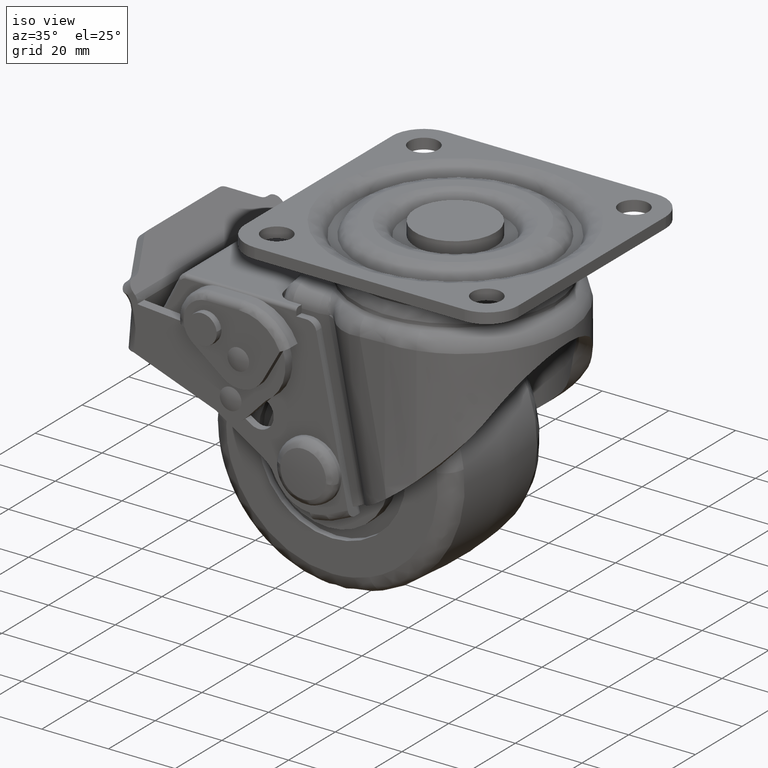
[diagram: clean part render]
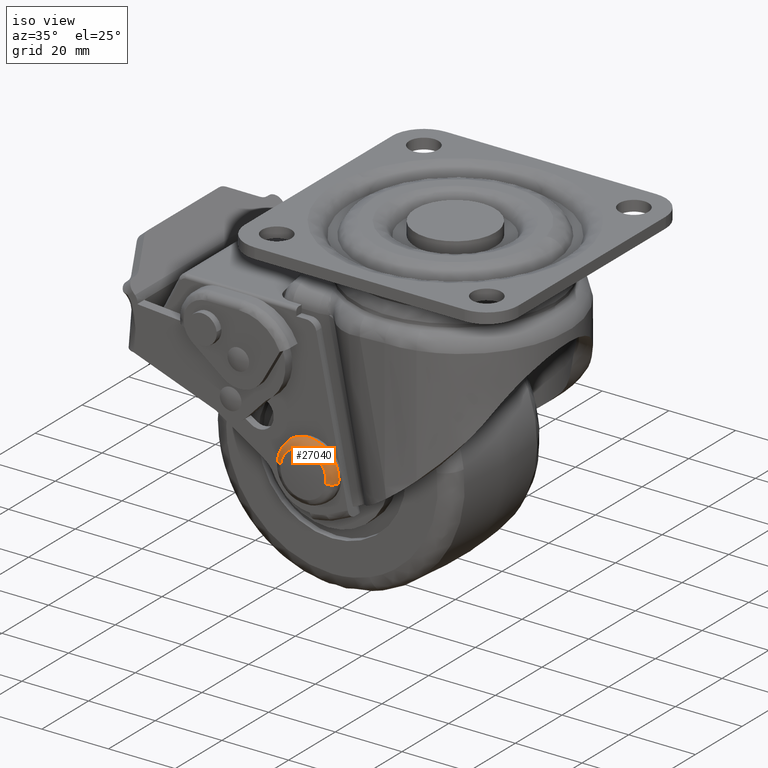
[diagram: same view with one face highlighted and labeled with its STEP entity id]
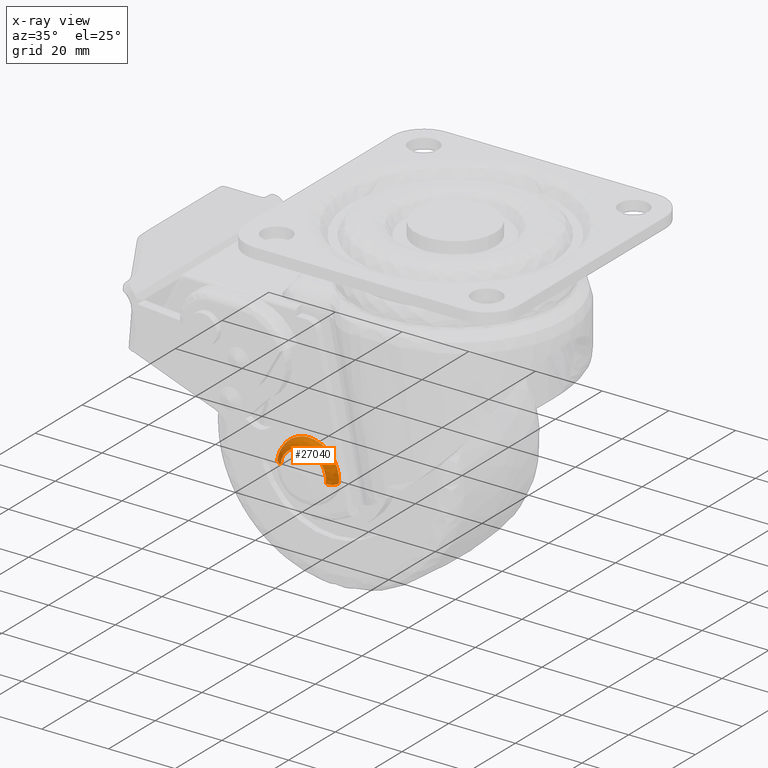
[diagram: x-ray of the same camera — body ghosted, the highlighted face saturated]
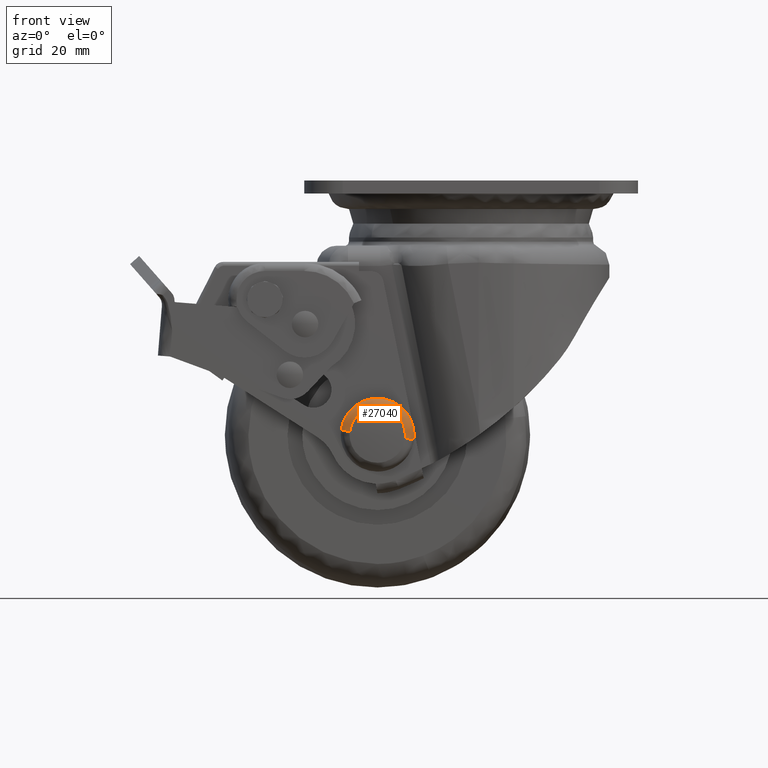
[diagram: same view with one face highlighted and labeled with its STEP entity id]
A machine part, iso view. The second image highlights one B-rep face of the part: STEP entity #27040.
The next image is the same camera in x-ray: the body ghosted, the highlighted face saturated — about 0% of this face is hidden behind the body in this view.
A second angle (front view) of the same face is appended — the face is thin or edge-on in the first view.
In plain terms, the highlighted face is a freeform B-spline surface patch.
Its self-contained STEP definition (entity closure, byte-faithful):
#26407=CARTESIAN_POINT('',(5.811674218707481,-29.053161868995410,-50.627999106358772));
#26408=VERTEX_POINT('',#26407);
#26414=CARTESIAN_POINT('',(8.929028311828976,-29.053161870163681,-58.627999102092261));
#26415=VERTEX_POINT('',#26414);
#26416=CARTESIAN_POINT('',(5.811674218707481,-29.053161868995410,-50.627999106358772));
#26417=CARTESIAN_POINT('',(6.274395239750678,-29.053161869026621,-51.019290411507697));
#26418=CARTESIAN_POINT('',(7.283405685725423,-29.053161869129180,-52.064192184336413));
#26419=CARTESIAN_POINT('',(8.301283685994950,-29.053161869356540,-53.813654656771739));
#26420=CARTESIAN_POINT('',(8.992850700197954,-29.053161869706930,-56.099178688386857));
#26421=CARTESIAN_POINT('',(9.052353214826036,-29.053161869979860,-57.656772369793622));
#26422=CARTESIAN_POINT('',(8.929028311828976,-29.053161870163681,-58.627999102092261));
#26423=B_SPLINE_CURVE_WITH_KNOTS('',3,(#26416,#26417,#26418,#26419,#26420,#26421,#26422),.UNSPECIFIED.,.F.,.U.,(4,1,1,1,4),(0.000000068808820,1.818019559321463,4.335311699469195,6.013455923362944,8.950278159138501),.UNSPECIFIED.);
#26424=EDGE_CURVE('',#26408,#26415,#26423,.T.);
#26543=CARTESIAN_POINT('',(-8.929036311828657,-29.053161870163681,-56.372000897907739));
#26544=VERTEX_POINT('',#26543);
#26554=CARTESIAN_POINT('',(-0.000003999999841,-29.053161869100101,-48.499999999999780));
#26555=VERTEX_POINT('',#26554);
#26556=CARTESIAN_POINT('',(-8.929036311828657,-29.053161870163681,-56.372000897907739));
#26557=CARTESIAN_POINT('',(-8.823203103318997,-29.053161870050172,-55.531858076485243));
#26558=CARTESIAN_POINT('',(-8.425900731529978,-29.053161869854080,-54.080078020798332));
#26559=CARTESIAN_POINT('',(-7.284676496168180,-29.053161869581619,-52.064202187539522));
#26560=CARTESIAN_POINT('',(-5.851416328861740,-29.053161869376989,-50.549867897270857));
#26561=CARTESIAN_POINT('',(-4.080824758525036,-29.053161869221800,-49.400586644710351));
#26562=CARTESIAN_POINT('',(-2.167619602670052,-29.053161869124249,-48.677696987338891));
#26563=CARTESIAN_POINT('',(-0.745164860445515,-29.053161869099711,-48.499796384354127));
#26564=CARTESIAN_POINT('',(-0.000003999999841,-29.053161869100101,-48.499999999999780));
#26565=B_SPLINE_CURVE_WITH_KNOTS('',3,(#26556,#26557,#26558,#26559,#26560,#26561,#26562,#26563,#26564),.UNSPECIFIED.,.F.,.U.,(4,1,1,1,1,1,4),(0.000000172929495,2.540284790419403,4.470929010480727,6.909517231630963,8.738560534670130,10.770833572611039,13.006262659751419),.UNSPECIFIED.);
#26566=EDGE_CURVE('',#26544,#26555,#26565,.T.);
#26568=CARTESIAN_POINT('',(-0.000003999999841,-29.053161869100101,-48.499999999999780));
#26569=CARTESIAN_POINT('',(0.723932113120254,-29.053161869039759,-48.499851469693702));
#26570=CARTESIAN_POINT('',(2.237593551534380,-29.053161868946241,-48.683509887147522));
#26571=CARTESIAN_POINT('',(4.215821030229355,-29.053161868919421,-49.457429479168553));
#26572=CARTESIAN_POINT('',(5.359440144580193,-29.053161868964882,-50.245503653525688));
#26573=CARTESIAN_POINT('',(5.811674218707481,-29.053161868995410,-50.627999106358772));
#26574=B_SPLINE_CURVE_WITH_KNOTS('',3,(#26568,#26569,#26570,#26571,#26572,#26573),.UNSPECIFIED.,.F.,.U.,(4,1,1,4),(0.000000040918571,2.171809846367652,4.541047606534105,6.317983840461574),.UNSPECIFIED.);
#26575=EDGE_CURVE('',#26555,#26408,#26574,.T.);
#26960=CARTESIAN_POINT('',(-6.628350634817715,-31.546599119232116,-56.662645089498113));
#26961=CARTESIAN_POINT('',(-5.790995724315819,-31.546599119232106,-50.034298454680233));
#26962=CARTESIAN_POINT('',(0.837350910502053,-31.546599119232116,-50.871653365182127));
#26963=CARTESIAN_POINT('',(7.465697545319928,-31.546599119232106,-51.709008275684027));
#26964=CARTESIAN_POINT('',(6.628342634818034,-31.546599119232116,-58.337354910501894));
#26965=CARTESIAN_POINT('',(-9.083266048084569,-31.366950750989783,-56.352517151202314));
#26966=CARTESIAN_POINT('',(-7.935783199286902,-31.366950750989780,-47.269255103117601));
#26967=CARTESIAN_POINT('',(1.147478848797826,-31.366950750989783,-48.416737951915266));
#26968=CARTESIAN_POINT('',(10.230740896882553,-31.366950750989780,-49.564220800712938));
#26969=CARTESIAN_POINT('',(9.083258048084888,-31.366950750989783,-58.647482848797651));
#26970=CARTESIAN_POINT('',(-8.923827244133479,-28.891221336028458,-56.372658956205669));
#26971=CARTESIAN_POINT('',(-7.796486200339144,-28.891221336028455,-47.448835712072032));
#26972=CARTESIAN_POINT('',(1.127337043794494,-28.891221336028458,-48.576176755866364));
#26973=CARTESIAN_POINT('',(10.051160287928132,-28.891221336028455,-49.703517799660695));
#26974=CARTESIAN_POINT('',(8.923819244133799,-28.891221336028458,-58.627341043794324));
#26982=(BOUNDED_SURFACE()B_SPLINE_SURFACE(2,2,((#26960,#26965,#26970),(#26961,#26966,#26971),(#26962,#26967,#26972),(#26963,#26968,#26973),(#26964,#26969,#26974)),.UNSPECIFIED.,.F.,.F.,.U.)B_SPLINE_SURFACE_WITH_KNOTS((3,2,3),(3,3),(0.0,14.902988983201290,29.805977966402569),(0.0,4.119737612577875),.UNSPECIFIED.)GEOMETRIC_REPRESENTATION_ITEM()RATIONAL_B_SPLINE_SURFACE(((0.912865147946400,0.647833853267935,0.912514118267738),(0.645493136421761,0.458087710727968,0.645244920955581),(0.912865147946400,0.647833853267935,0.912514118267738),(0.645493136421761,0.458087710727968,0.645244920955581),(0.912865147946400,0.647833853267935,0.912514118267738)))REPRESENTATION_ITEM('')SURFACE());
#26983=ORIENTED_EDGE('',*,*,#26566,.F.);
#26984=CARTESIAN_POINT('',(-6.788157485239669,-31.529644137011640,-56.642456431096747));
#26985=VERTEX_POINT('',#26984);
#26986=CARTESIAN_POINT('',(-6.788157485239669,-31.529644137011640,-56.642456431096747));
#26987=CARTESIAN_POINT('',(-7.173593044585087,-31.476634480888631,-56.593764660963487));
#26988=CARTESIAN_POINT('',(-7.793627247896261,-31.231302488117759,-56.515436229217130));
#26989=CARTESIAN_POINT('',(-8.402359070482010,-30.642521704770491,-56.438535618309082));
#26990=CARTESIAN_POINT('',(-8.812745765264502,-29.948746734529170,-56.386691790916387));
#26991=CARTESIAN_POINT('',(-8.929516866302224,-29.407919302697319,-56.371940189842590));
#26992=CARTESIAN_POINT('',(-8.929036311828657,-29.053161870163681,-56.372000897907739));
#26993=B_SPLINE_CURVE_WITH_KNOTS('',3,(#26986,#26987,#26988,#26989,#26990,#26991,#26992),.UNSPECIFIED.,.F.,.U.,(4,1,1,1,4),(0.000000346805479,1.175970786803507,1.959915633324870,2.519912017597094,3.583883420214898),.UNSPECIFIED.);
#26994=EDGE_CURVE('',#26985,#26544,#26993,.T.);
#26995=ORIENTED_EDGE('',*,*,#26994,.F.);
#26996=CARTESIAN_POINT('',(-0.000003999999841,-31.529644181574849,-50.657894746691909));
#26997=VERTEX_POINT('',#26996);
#26998=CARTESIAN_POINT('',(-6.788157485239669,-31.529644137011640,-56.642456431096747));
#26999=CARTESIAN_POINT('',(-6.688720142690690,-31.529644142910040,-55.850352040607710));
#27000=CARTESIAN_POINT('',(-6.292839521340403,-31.529644152390350,-54.577155224684176));
#27001=CARTESIAN_POINT('',(-5.357600834694368,-31.529644162822390,-53.176259564657727));
#27002=CARTESIAN_POINT('',(-4.303527080050796,-31.529644170749680,-52.111629820340127));
#27003=CARTESIAN_POINT('',(-3.039399053621495,-31.529644176861272,-51.290906397828202));
#27004=CARTESIAN_POINT('',(-1.493438854927162,-31.529644180769509,-50.766043855136793));
#27005=CARTESIAN_POINT('',(-0.489239837921728,-31.529644181575360,-50.657827844910933));
#27006=CARTESIAN_POINT('',(-0.000003999999841,-31.529644181574849,-50.657894746691909));
#27007=B_SPLINE_CURVE_WITH_KNOTS('',3,(#26998,#26999,#27000,#27001,#27002,#27003,#27004,#27005,#27006),.UNSPECIFIED.,.F.,.U.,(4,1,1,1,1,1,4),(0.000000180895514,2.394701582150401,3.939678447351436,5.021084091684855,6.875098898178255,8.420096218104273,9.887801736038464),.UNSPECIFIED.);
#27008=EDGE_CURVE('',#26985,#26997,#27007,.T.);
#27009=ORIENTED_EDGE('',*,*,#27008,.T.);
#27010=CARTESIAN_POINT('',(6.788149485239988,-31.529644137011640,-58.357543568903267));
#27011=VERTEX_POINT('',#27010);
#27012=CARTESIAN_POINT('',(-0.000003999999841,-31.529644181574849,-50.657894746691909));
#27013=CARTESIAN_POINT('',(0.665021111281036,-31.529644185200571,-50.657639635398041));
#27014=CARTESIAN_POINT('',(1.934425148858675,-31.529644190137709,-50.844427261654793));
#27015=CARTESIAN_POINT('',(3.407422354521658,-31.529644191119228,-51.509485107528057));
#27016=CARTESIAN_POINT('',(4.509748609806627,-31.529644188618139,-52.312645129479080));
#27017=CARTESIAN_POINT('',(5.253632481769957,-31.529644184636979,-53.071278319058493));
#27018=CARTESIAN_POINT('',(5.989410654827654,-31.529644177651431,-54.109324133786963));
#27019=CARTESIAN_POINT('',(6.536295887019761,-31.529644168034221,-55.298668956611962));
#27020=CARTESIAN_POINT('',(6.862668961565890,-31.529644153774360,-56.813161166635332));
#27021=CARTESIAN_POINT('',(6.856467113888210,-31.529644143100160,-57.817757325108587));
#27022=CARTESIAN_POINT('',(6.788149485239988,-31.529644137011640,-58.357543568903267));
#27023=B_SPLINE_CURVE_WITH_KNOTS('',3,(#27012,#27013,#27014,#27015,#27016,#27017,#27018,#27019,#27020,#27021,#27022),.UNSPECIFIED.,.F.,.U.,(4,1,1,1,1,1,1,1,4),(0.000000269836244,1.995005649492537,3.808695689229670,4.806223406610176,6.075750774206192,6.982567133639961,8.614897310332939,9.975180270806300,11.607443474295851),.UNSPECIFIED.);
#27024=EDGE_CURVE('',#26997,#27011,#27023,.T.);
#27025=ORIENTED_EDGE('',*,*,#27024,.T.);
#27026=CARTESIAN_POINT('',(6.788149485239988,-31.529644137011640,-58.357543568903267));
#27027=CARTESIAN_POINT('',(7.173583960727770,-31.476634087667609,-58.406235202113749));
#27028=CARTESIAN_POINT('',(7.793622725283576,-31.231304475468171,-58.484564210078268));
#27029=CARTESIAN_POINT('',(8.402347260479457,-30.642519477877329,-58.561463900376481));
#27030=CARTESIAN_POINT('',(8.812741831823344,-29.948748586784809,-58.613308722808391));
#27031=CARTESIAN_POINT('',(8.929507439352058,-29.407919080975041,-58.628059629892391));
#27032=CARTESIAN_POINT('',(8.929028311828976,-29.053161870163681,-58.627999102092261));
#27033=B_SPLINE_CURVE_WITH_KNOTS('',3,(#27026,#27027,#27028,#27029,#27030,#27031,#27032),.UNSPECIFIED.,.F.,.U.,(4,1,1,1,4),(0.000000346807115,1.175970786804645,1.959915633325472,2.519912017597456,3.583883420214882),.UNSPECIFIED.);
#27034=EDGE_CURVE('',#27011,#26415,#27033,.T.);
#27035=ORIENTED_EDGE('',*,*,#27034,.T.);
#27036=ORIENTED_EDGE('',*,*,#26424,.F.);
#27037=ORIENTED_EDGE('',*,*,#26575,.F.);
#27038=EDGE_LOOP('',(#26983,#26995,#27009,#27025,#27035,#27036,#27037));
#27039=FACE_OUTER_BOUND('',#27038,.T.);
#27040=ADVANCED_FACE('',(#27039),#26982,.T.);